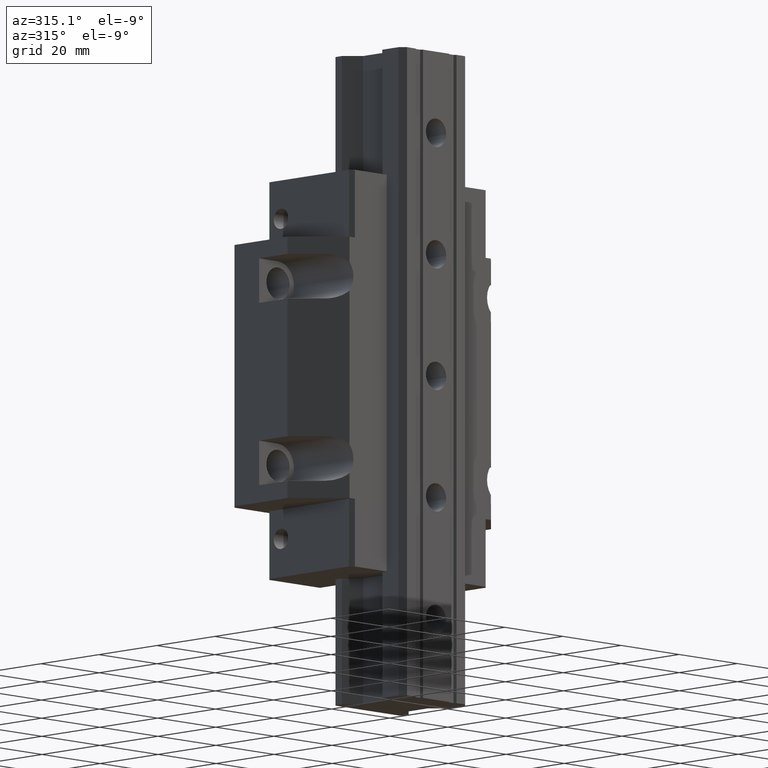
[diagram: clean part render]
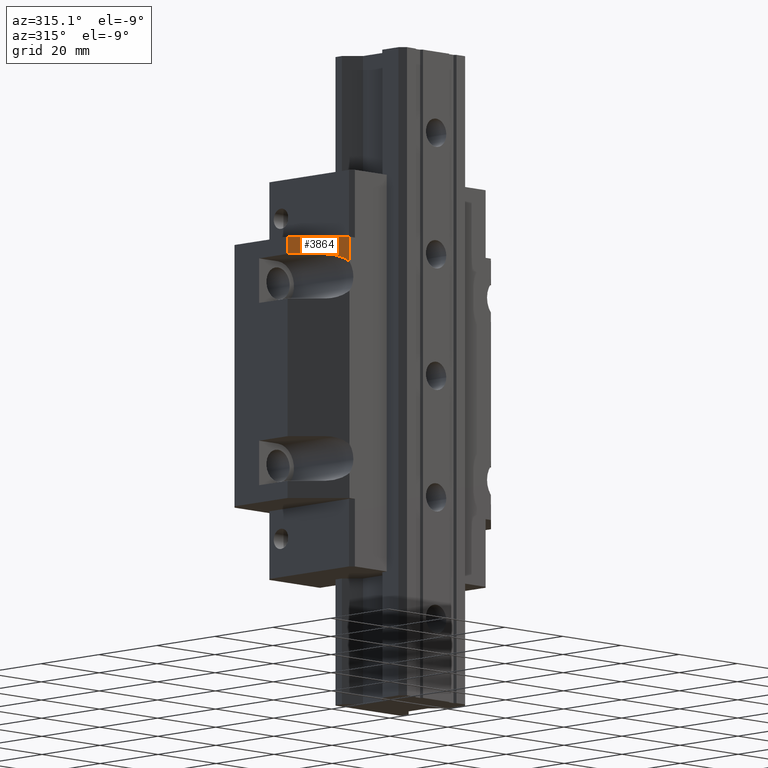
[diagram: same view with one face highlighted and labeled with its STEP entity id]
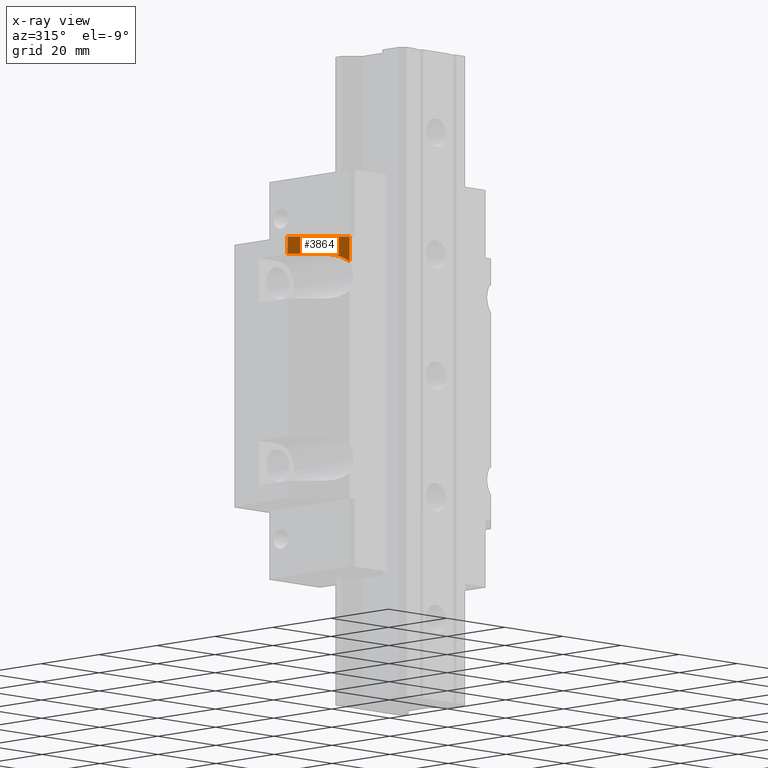
[diagram: x-ray of the same camera — body ghosted, the highlighted face saturated]
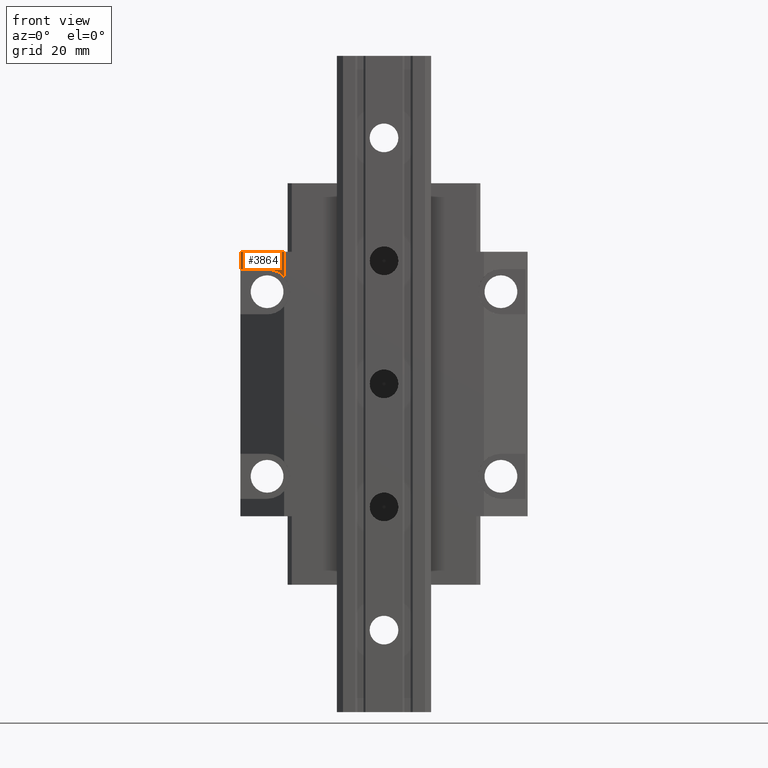
[diagram: same view with one face highlighted and labeled with its STEP entity id]
A machine part, auxiliary view. The second image highlights one B-rep face of the part: STEP entity #3864.
The next image is the same camera in x-ray: the body ghosted, the highlighted face saturated — about 0% of this face is hidden behind the body in this view.
A second angle (front view) of the same face is appended — the face is thin or edge-on in the first view.
In plain terms, the highlighted planar face has unit normal (-0.7071, -0.7071, 0).
Its self-contained STEP definition (entity closure, byte-faithful):
#248=DIRECTION('',(-7.071067811853E-1,7.071067811878E-1,0.E0));
#249=VECTOR('',#248,1.507772609821E1);
#250=CARTESIAN_POINT('',(-2.433843763110E1,-3.049998E1,3.225E1));
#251=LINE('',#250,#249);
#630=DIRECTION('',(-4.924402460352E-13,3.810205889604E-14,1.E0));
#631=VECTOR('',#630,6.153974603856E0);
#632=CARTESIAN_POINT('',(-2.433843763110E1,-3.049998E1,2.609602539614E1));
#633=LINE('',#632,#631);
#1345=DIRECTION('',(7.071067811854E-1,-7.071067811877E-1,0.E0));
#1346=VECTOR('',#1345,9.192388155439E0);
#1347=CARTESIAN_POINT('',(-3.5E1,-1.983841763106E1,2.8E1));
#1348=LINE('',#1347,#1346);
#1349=DIRECTION('',(2.173424838796E-14,-2.031316291644E-13,1.E0));
#1350=VECTOR('',#1349,4.25E0);
#1351=CARTESIAN_POINT('',(-3.5E1,-1.983841763106E1,2.8E1));
#1352=LINE('',#1351,#1350);
#1353=CARTESIAN_POINT('',(-2.85E1,-2.633841763108E1,2.8E1));
#1354=CARTESIAN_POINT('',(-2.772629901873E1,-2.711211861235E1,2.8E1));
#1355=CARTESIAN_POINT('',(-2.625889644214E1,-2.857952118895E1,
2.768309819393E1));
#1356=CARTESIAN_POINT('',(-2.493721109205E1,-2.990120653904E1,
2.678896630398E1));
#1357=CARTESIAN_POINT('',(-2.433843763110E1,-3.049998E1,2.609602539615E1));
#1659=CARTESIAN_POINT('',(-2.433843763110E1,-3.049998E1,2.609602539615E1));
#1660=VERTEX_POINT('',#1659);
#1661=CARTESIAN_POINT('',(-2.433843763110E1,-3.049998E1,3.225E1));
#1662=VERTEX_POINT('',#1661);
#1878=CARTESIAN_POINT('',(-3.5E1,-1.983841763106E1,3.225E1));
#1879=VERTEX_POINT('',#1878);
#1916=VERTEX_POINT('',#1353);
#1917=CARTESIAN_POINT('',(-3.5E1,-1.983841763106E1,2.8E1));
#1918=VERTEX_POINT('',#1917);
#3851=CARTESIAN_POINT('',(-3.5E1,-1.983841763106E1,-3.225E1));
#3852=DIRECTION('',(-7.071067811877E-1,-7.071067811854E-1,0.E0));
#3853=DIRECTION('',(7.071067811854E-1,-7.071067811877E-1,0.E0));
#3854=AXIS2_PLACEMENT_3D('',#3851,#3852,#3853);
#3855=PLANE('',#3854);
#3857=ORIENTED_EDGE('',*,*,#3856,.F.);
#3858=ORIENTED_EDGE('',*,*,#3843,.F.);
#3859=ORIENTED_EDGE('',*,*,#3694,.T.);
#3860=ORIENTED_EDGE('',*,*,#2297,.F.);
#3861=ORIENTED_EDGE('',*,*,#2812,.F.);
#3862=EDGE_LOOP('',(#3857,#3858,#3859,#3860,#3861));
#3863=FACE_OUTER_BOUND('',#3862,.F.);
#3864=ADVANCED_FACE('',(#3863),#3855,.T.);
#1358=B_SPLINE_CURVE_WITH_KNOTS('',3,(#1353,#1354,#1355,#1356,#1357),
.UNSPECIFIED.,.F.,.F.,(4,1,4),(0.E0,5.E-1,1.E0),.UNSPECIFIED.);
#2297=EDGE_CURVE('',#1662,#1879,#251,.T.);
#2812=EDGE_CURVE('',#1660,#1662,#633,.T.);
#3694=EDGE_CURVE('',#1918,#1879,#1352,.T.);
#3843=EDGE_CURVE('',#1918,#1916,#1348,.T.);
#3856=EDGE_CURVE('',#1916,#1660,#1358,.T.);